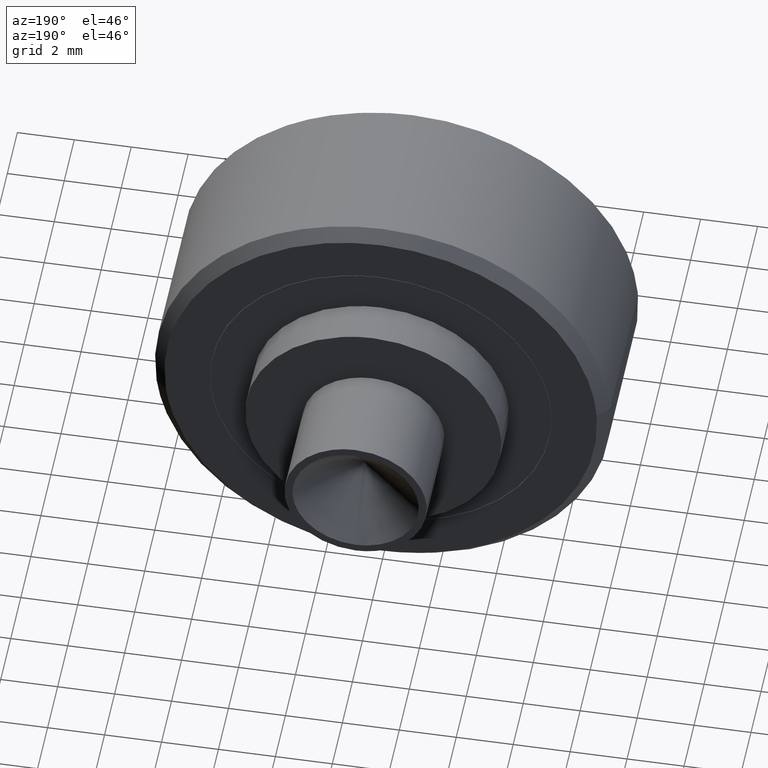
[diagram: clean part render]
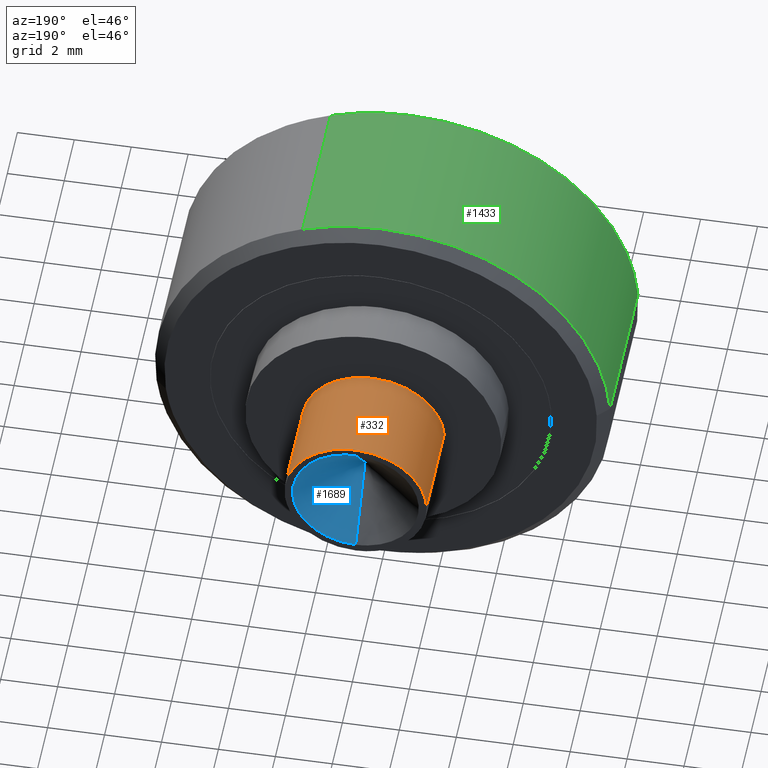
[diagram: same view with three faces highlighted in distinct colors, each labeled with its STEP entity id]
A machine part, auxiliary view with three faces highlighted in distinct colors.
Their STEP definitions:

[orange] entity #332 — the highlighted face is a freeform B-spline surface patch.
#230=CARTESIAN_POINT('',(2.482523815909166,11.437500000000007,-0.295085586641896));
#231=CARTESIAN_POINT('',(2.490969038621514,11.437500000000005,-0.224036821594944));
#232=CARTESIAN_POINT('',(2.495336996054667,11.437500000000000,-0.152621348837143));
#233=CARTESIAN_POINT('',(2.647958344891809,11.437500000000004,2.342715647217524));
#234=CARTESIAN_POINT('',(0.152621348837143,11.437500000000000,2.495336996054667));
#235=CARTESIAN_POINT('',(-2.342715647217524,11.437500000000004,2.647958344891809));
#236=CARTESIAN_POINT('',(-2.495336996054667,11.437500000000000,0.152621348837142));
#237=CARTESIAN_POINT('',(2.482523815909166,7.760312500000000,-0.295085586641896));
#238=CARTESIAN_POINT('',(2.490969038621514,7.760312500000000,-0.224036821594944));
#239=CARTESIAN_POINT('',(2.495336996054667,7.760312499999999,-0.152621348837143));
#240=CARTESIAN_POINT('',(2.647958344891809,7.760312499999999,2.342715647217524));
#241=CARTESIAN_POINT('',(0.152621348837143,7.760312499999999,2.495336996054667));
#242=CARTESIAN_POINT('',(-2.342715647217524,7.760312499999999,2.647958344891809));
#243=CARTESIAN_POINT('',(-2.495336996054667,7.760312499999999,0.152621348837142));
#251=(BOUNDED_SURFACE()B_SPLINE_SURFACE(2,1,((#230,#237),(#231,#238),(#232,#239),(#233,#240),(#234,#241),(#235,#242),(#236,#243)),.UNSPECIFIED.,.F.,.F.,.U.)B_SPLINE_SURFACE_WITH_KNOTS((3,2,2,3),(2,2),(0.0,0.165685424949238,4.307821048680188,8.449956672411137),(0.0,3.677187500000006),.UNSPECIFIED.)GEOMETRIC_REPRESENTATION_ITEM()RATIONAL_B_SPLINE_SURFACE(((0.977505800795127,0.977505800795127),(0.988284271247462,0.988284271247462),(1.0,1.0),(0.707106781186548,0.707106781186548),(1.0,1.0),(0.707106781186548,0.707106781186548),(1.0,1.0)))REPRESENTATION_ITEM('')SURFACE());
#252=CARTESIAN_POINT('',(2.482524289611070,7.850000000000031,-0.295081601383317));
#253=VERTEX_POINT('',#252);
#254=CARTESIAN_POINT('',(0.0,7.850000000000000,2.500000000000000));
#255=VERTEX_POINT('',#254);
#256=CARTESIAN_POINT('',(2.482524289611070,7.850000000000031,-0.295081601383317));
#257=CARTESIAN_POINT('',(2.500000000000000,7.850000000000000,-0.148058285435143));
#258=CARTESIAN_POINT('',(2.500000000000000,7.850000000000000,-1.467165E-016));
#259=CARTESIAN_POINT('',(2.500000000000000,7.849999999999999,2.500000000000000));
#260=CARTESIAN_POINT('',(0.0,7.850000000000000,2.500000000000000));
#268=(BOUNDED_CURVE()B_SPLINE_CURVE(2,(#256,#257,#258,#259,#260),.UNSPECIFIED.,.F.,.U.)B_SPLINE_CURVE_WITH_KNOTS((3,2,3),(0.229562744820881,0.250000000000000,0.500000000000000),.UNSPECIFIED.)CURVE()GEOMETRIC_REPRESENTATION_ITEM()RATIONAL_B_SPLINE_CURVE((0.956027285957943,0.976056266187504,1.0,0.707106781186548,1.0))REPRESENTATION_ITEM(''));
#269=EDGE_CURVE('',#253,#255,#268,.T.);
#270=ORIENTED_EDGE('',*,*,#269,.F.);
#271=CARTESIAN_POINT('',(2.482524283771402,11.350000000000000,-0.295081650513167));
#272=VERTEX_POINT('',#271);
#273=CARTESIAN_POINT('',(2.482524283771402,11.350000000000000,-0.295081650513167));
#274=CARTESIAN_POINT('',(2.482524289611070,7.850000000000031,-0.295081601383317));
#275=QUASI_UNIFORM_CURVE('',1,(#273,#274),.UNSPECIFIED.,.F.,.U.);
#276=EDGE_CURVE('',#272,#253,#275,.T.);
#277=ORIENTED_EDGE('',*,*,#276,.F.);
#278=CARTESIAN_POINT('',(0.0,11.350000000000000,2.500000000000000));
#279=VERTEX_POINT('',#278);
#280=CARTESIAN_POINT('',(2.482524283771402,11.349999999999998,-0.295081650513167));
#281=CARTESIAN_POINT('',(2.500000000000000,11.350000000000000,-0.148058310259754));
#282=CARTESIAN_POINT('',(2.500000000000000,11.350000000000000,-1.467165E-016));
#283=CARTESIAN_POINT('',(2.500000000000000,11.350000000000001,2.500000000000000));
#284=CARTESIAN_POINT('',(0.0,11.350000000000000,2.500000000000000));
#292=(BOUNDED_CURVE()B_SPLINE_CURVE(2,(#280,#281,#282,#283,#284),.UNSPECIFIED.,.F.,.U.)B_SPLINE_CURVE_WITH_KNOTS((3,2,3),(0.229562741476258,0.250000000000000,0.500000000000000),.UNSPECIFIED.)CURVE()GEOMETRIC_REPRESENTATION_ITEM()RATIONAL_B_SPLINE_CURVE((0.956027279402328,0.976056262269034,1.0,0.707106781186548,1.0))REPRESENTATION_ITEM(''));
#293=EDGE_CURVE('',#272,#279,#292,.T.);
#294=ORIENTED_EDGE('',*,*,#293,.T.);
#295=CARTESIAN_POINT('',(-2.495336996053892,11.350000000000000,0.152621348849819));
#296=VERTEX_POINT('',#295);
#297=CARTESIAN_POINT('',(0.0,11.350000000000000,2.500000000000000));
#298=CARTESIAN_POINT('',(-2.351765167240298,11.350000000000001,2.500000000000000));
#299=CARTESIAN_POINT('',(-2.495336996053891,11.350000000000007,0.152621348849819));
#307=(BOUNDED_CURVE()B_SPLINE_CURVE(2,(#297,#298,#299),.UNSPECIFIED.,.F.,.U.)B_SPLINE_CURVE_WITH_KNOTS((3,3),(0.500000000000000,0.739332962240215),.UNSPECIFIED.)CURVE()GEOMETRIC_REPRESENTATION_ITEM()RATIONAL_B_SPLINE_CURVE((1.0,0.719603993285220,0.976072041669444))REPRESENTATION_ITEM(''));
#308=EDGE_CURVE('',#279,#296,#307,.T.);
#309=ORIENTED_EDGE('',*,*,#308,.T.);
#310=CARTESIAN_POINT('',(-2.495336996053892,7.850000000000000,0.152621348849819));
#311=VERTEX_POINT('',#310);
#312=CARTESIAN_POINT('',(-2.495336996053892,11.350000000000000,0.152621348849819));
#313=CARTESIAN_POINT('',(-2.495336996053892,7.850000000000000,0.152621348849819));
#314=QUASI_UNIFORM_CURVE('',1,(#312,#313),.UNSPECIFIED.,.F.,.U.);
#315=EDGE_CURVE('',#296,#311,#314,.T.);
#316=ORIENTED_EDGE('',*,*,#315,.T.);
#317=CARTESIAN_POINT('',(0.0,7.850000000000000,2.500000000000000));
#318=CARTESIAN_POINT('',(-2.351765167240298,7.850000000000001,2.500000000000000));
#319=CARTESIAN_POINT('',(-2.495336996053891,7.850000000000000,0.152621348849819));
#327=(BOUNDED_CURVE()B_SPLINE_CURVE(2,(#317,#318,#319),.UNSPECIFIED.,.F.,.U.)B_SPLINE_CURVE_WITH_KNOTS((3,3),(0.500000000000000,0.739332962240215),.UNSPECIFIED.)CURVE()GEOMETRIC_REPRESENTATION_ITEM()RATIONAL_B_SPLINE_CURVE((1.0,0.719603993285220,0.976072041669444))REPRESENTATION_ITEM(''));
#328=EDGE_CURVE('',#255,#311,#327,.T.);
#329=ORIENTED_EDGE('',*,*,#328,.F.);
#330=EDGE_LOOP('',(#270,#277,#294,#309,#316,#329));
#331=FACE_OUTER_BOUND('',#330,.T.);
#332=ADVANCED_FACE('',(#331),#251,.T.);

[blue] entity #1689 — the highlighted face is a freeform B-spline surface patch.
#1638=CARTESIAN_POINT('',(0.0,9.489584137775408,-1.467165E-016));
#1639=CARTESIAN_POINT('',(-0.059525646005946,11.397673156469510,-2.273192709627095));
#1640=CARTESIAN_POINT('',(0.0,9.489584137775408,-1.467165E-016));
#1641=CARTESIAN_POINT('',(2.315082437704052,11.397673156469509,-2.335374010664685));
#1642=CARTESIAN_POINT('',(0.0,9.489584137775408,-1.467165E-016));
#1643=CARTESIAN_POINT('',(2.273625606077099,11.397673156469510,0.039686282576530));
#1644=CARTESIAN_POINT('',(0.0,9.489584137775408,-1.467165E-016));
#1645=CARTESIAN_POINT('',(2.232168774450145,11.397673156469509,2.414746575817746));
#1646=CARTESIAN_POINT('',(0.0,9.489584137775408,-1.467165E-016));
#1647=CARTESIAN_POINT('',(-0.138822666064501,11.397673156469510,2.269730526961503));
#1655=(BOUNDED_SURFACE()B_SPLINE_SURFACE(1,2,((#1638,#1640,#1642,#1644,#1646),(#1639,#1641,#1643,#1645,#1647)),.UNSPECIFIED.,.F.,.F.,.U.)B_SPLINE_SURFACE_WITH_KNOTS((2,2),(3,2,3),(0.0,1.0),(0.0,1.0,2.0),.UNSPECIFIED.)GEOMETRIC_REPRESENTATION_ITEM()RATIONAL_B_SPLINE_SURFACE(((1.0,0.691513055782269,1.0,0.691513055782269,1.0),(1.0,0.691513055782269,1.0,0.691513055782269,1.0)))REPRESENTATION_ITEM('')SURFACE());
#1656=CARTESIAN_POINT('',(9.050483E-017,11.350000000000000,-2.217157287525388));
#1657=VERTEX_POINT('',#1656);
#1658=CARTESIAN_POINT('',(-9.050483E-017,11.350000000000000,2.217157287525388));
#1659=VERTEX_POINT('',#1658);
#1660=CARTESIAN_POINT('',(0.0,11.350000000000000,-2.217157287525385));
#1661=CARTESIAN_POINT('',(2.217157287525386,11.350000000000001,-2.217157287525386));
#1662=CARTESIAN_POINT('',(2.217157287525385,11.350000000000000,-1.467165E-016));
#1663=CARTESIAN_POINT('',(2.217157287525386,11.350000000000001,2.217157287525386));
#1664=CARTESIAN_POINT('',(0.0,11.350000000000000,2.217157287525385));
#1672=(BOUNDED_CURVE()B_SPLINE_CURVE(2,(#1660,#1661,#1662,#1663,#1664),.UNSPECIFIED.,.F.,.U.)B_SPLINE_CURVE_WITH_KNOTS((3,2,3),(0.0,0.500000000000000,1.0),.UNSPECIFIED.)CURVE()GEOMETRIC_REPRESENTATION_ITEM()RATIONAL_B_SPLINE_CURVE((1.0,0.707106781186548,1.0,0.707106781186548,1.0))REPRESENTATION_ITEM(''));
#1673=EDGE_CURVE('',#1657,#1659,#1672,.T.);
#1674=ORIENTED_EDGE('',*,*,#1673,.F.);
#1675=CARTESIAN_POINT('',(0.0,9.489584137775410,-1.467165E-016));
#1676=VERTEX_POINT('',#1675);
#1677=CARTESIAN_POINT('',(0.0,9.489584137775410,-1.467165E-016));
#1678=CARTESIAN_POINT('',(9.050483E-017,11.350000000000000,-2.217157287525388));
#1679=QUASI_UNIFORM_CURVE('',1,(#1677,#1678),.UNSPECIFIED.,.F.,.U.);
#1680=EDGE_CURVE('',#1676,#1657,#1679,.T.);
#1681=ORIENTED_EDGE('',*,*,#1680,.F.);
#1682=CARTESIAN_POINT('',(0.0,9.489584137775410,-1.467165E-016));
#1683=CARTESIAN_POINT('',(-9.050483E-017,11.350000000000000,2.217157287525388));
#1684=QUASI_UNIFORM_CURVE('',1,(#1682,#1683),.UNSPECIFIED.,.F.,.U.);
#1685=EDGE_CURVE('',#1676,#1659,#1684,.T.);
#1686=ORIENTED_EDGE('',*,*,#1685,.T.);
#1687=EDGE_LOOP('',(#1674,#1681,#1686));
#1688=FACE_OUTER_BOUND('',#1687,.T.);
#1689=ADVANCED_FACE('',(#1688),#1655,.F.);

[green] entity #1433 — the highlighted face is a freeform B-spline surface patch.
#1230=CARTESIAN_POINT('',(-7.975338669865353,0.400000000000833,0.627672765829178));
#1231=VERTEX_POINT('',#1230);
#1237=CARTESIAN_POINT('',(-7.985078721705695,0.400000000000001,0.488382849957833));
#1238=VERTEX_POINT('',#1237);
#1239=CARTESIAN_POINT('',(-7.975338669865353,0.400000000000833,0.627672765829178));
#1240=CARTESIAN_POINT('',(-7.980816501966211,0.400000000000000,0.558070309636122));
#1241=CARTESIAN_POINT('',(-7.985078721705695,0.400000000000000,0.488382849957833));
#1249=(BOUNDED_CURVE()B_SPLINE_CURVE(2,(#1239,#1240,#1241),.UNSPECIFIED.,.F.,.U.)B_SPLINE_CURVE_WITH_KNOTS((3,3),(0.736331300632494,0.739333080361814),.UNSPECIFIED.)CURVE()GEOMETRIC_REPRESENTATION_ITEM()RATIONAL_B_SPLINE_CURVE((0.969723356171246,0.972855598818611,0.976072294826647))REPRESENTATION_ITEM(''));
#1250=EDGE_CURVE('',#1231,#1238,#1249,.T.);
#1288=CARTESIAN_POINT('',(2.812943094418373,0.400000000000000,7.489148893403270));
#1289=VERTEX_POINT('',#1288);
#1305=CARTESIAN_POINT('',(0.0,0.400000000000000,8.0));
#1306=VERTEX_POINT('',#1305);
#1307=CARTESIAN_POINT('',(2.812943094418374,0.400000000000000,7.489148893403270));
#1308=CARTESIAN_POINT('',(1.452858315335820,0.400000000000000,8.0));
#1309=CARTESIAN_POINT('',(0.0,0.400000000000000,8.0));
#1317=(BOUNDED_CURVE()B_SPLINE_CURVE(2,(#1307,#1308,#1309),.UNSPECIFIED.,.F.,.U.)B_SPLINE_CURVE_WITH_KNOTS((3,3),(0.440284200455737,0.500000000000000),.UNSPECIFIED.)CURVE()GEOMETRIC_REPRESENTATION_ITEM()RATIONAL_B_SPLINE_CURVE((0.893499590806314,0.930038589029847,1.0))REPRESENTATION_ITEM(''));
#1318=EDGE_CURVE('',#1289,#1306,#1317,.T.);
#1320=CARTESIAN_POINT('',(0.0,0.400000000000000,8.0));
#1321=CARTESIAN_POINT('',(-7.395123933253803,0.400000000000000,8.0));
#1322=CARTESIAN_POINT('',(-7.975338669865353,0.400000000000833,0.627672765829178));
#1330=(BOUNDED_CURVE()B_SPLINE_CURVE(2,(#1320,#1321,#1322),.UNSPECIFIED.,.F.,.U.)B_SPLINE_CURVE_WITH_KNOTS((3,3),(0.500000000000000,0.736331300632493),.UNSPECIFIED.)CURVE()GEOMETRIC_REPRESENTATION_ITEM()RATIONAL_B_SPLINE_CURVE((1.0,0.723120658605518,0.969723356171244))REPRESENTATION_ITEM(''));
#1331=EDGE_CURVE('',#1306,#1231,#1330,.T.);
#1368=CARTESIAN_POINT('',(2.812943795132577,6.088750000000001,7.489148630213257));
#1369=CARTESIAN_POINT('',(1.687915613723266,6.088750000000001,7.911712154921204));
#1370=CARTESIAN_POINT('',(0.488388316278856,6.088750000000001,7.985078387374934));
#1371=CARTESIAN_POINT('',(-7.496690071096078,6.088750000000001,8.473466703653790));
#1372=CARTESIAN_POINT('',(-7.985078387374934,6.088750000000001,0.488388316278856));
#1373=CARTESIAN_POINT('',(2.812943795132577,0.257781250000001,7.489148630213257));
#1374=CARTESIAN_POINT('',(1.687915613723266,0.257781250000001,7.911712154921204));
#1375=CARTESIAN_POINT('',(0.488388316278856,0.257781250000001,7.985078387374934));
#1376=CARTESIAN_POINT('',(-7.496690071096078,0.257781250000001,8.473466703653790));
#1377=CARTESIAN_POINT('',(-7.985078387374934,0.257781250000001,0.488388316278856));
#1385=(BOUNDED_SURFACE()B_SPLINE_SURFACE(2,1,((#1368,#1373),(#1369,#1374),(#1370,#1375),(#1371,#1376),(#1372,#1377)),.UNSPECIFIED.,.F.,.F.,.U.)B_SPLINE_SURFACE_WITH_KNOTS((3,2,3),(2,2),(0.0,2.650966799187807,15.905800795126840),(0.0,5.830968750000000),.UNSPECIFIED.)GEOMETRIC_REPRESENTATION_ITEM()RATIONAL_B_SPLINE_SURFACE(((0.906274169979695,0.906274169979695),(0.941421356237309,0.941421356237309),(1.0,1.0),(0.707106781186548,0.707106781186548),(1.0,1.0)))REPRESENTATION_ITEM('')SURFACE());
#1386=CARTESIAN_POINT('',(2.812941999224945,5.949999999999998,7.489149304760366));
#1387=VERTEX_POINT('',#1386);
#1388=CARTESIAN_POINT('',(0.0,5.950000000000000,8.0));
#1389=VERTEX_POINT('',#1388);
#1390=CARTESIAN_POINT('',(2.812941999224944,5.949999999999998,7.489149304760366));
#1391=CARTESIAN_POINT('',(1.452858097693186,5.949999999999999,8.0));
#1392=CARTESIAN_POINT('',(0.0,5.950000000000000,8.0));
#1400=(BOUNDED_CURVE()B_SPLINE_CURVE(2,(#1390,#1391,#1392),.UNSPECIFIED.,.F.,.U.)B_SPLINE_CURVE_WITH_KNOTS((3,3),(0.440284208775499,0.500000000000000),.UNSPECIFIED.)CURVE()GEOMETRIC_REPRESENTATION_ITEM()RATIONAL_B_SPLINE_CURVE((0.893499600987734,0.930038598777055,1.0))REPRESENTATION_ITEM(''));
#1401=EDGE_CURVE('',#1387,#1389,#1400,.T.);
#1402=ORIENTED_EDGE('',*,*,#1401,.T.);
#1403=CARTESIAN_POINT('',(-7.985078387375440,5.949999999998196,0.488388316285977));
#1404=VERTEX_POINT('',#1403);
#1405=CARTESIAN_POINT('',(0.0,5.950000000000000,8.0));
#1406=CARTESIAN_POINT('',(-7.525648535218923,5.950000000000000,8.0));
#1407=CARTESIAN_POINT('',(-7.985078387375440,5.949999999998196,0.488388316285977));
#1415=(BOUNDED_CURVE()B_SPLINE_CURVE(2,(#1405,#1406,#1407),.UNSPECIFIED.,.F.,.U.)B_SPLINE_CURVE_WITH_KNOTS((3,3),(0.500000000000000,0.739332962241359),.UNSPECIFIED.)CURVE()GEOMETRIC_REPRESENTATION_ITEM()RATIONAL_B_SPLINE_CURVE((1.0,0.719603993283880,0.976072041671895))REPRESENTATION_ITEM(''));
#1416=EDGE_CURVE('',#1389,#1404,#1415,.T.);
#1417=ORIENTED_EDGE('',*,*,#1416,.T.);
#1418=CARTESIAN_POINT('',(-7.985078387375440,5.949999999998196,0.488388316285977));
#1419=CARTESIAN_POINT('',(-7.985078721705695,0.400000000000001,0.488382849957833));
#1420=QUASI_UNIFORM_CURVE('',1,(#1418,#1419),.UNSPECIFIED.,.F.,.U.);
#1421=EDGE_CURVE('',#1404,#1238,#1420,.T.);
#1422=ORIENTED_EDGE('',*,*,#1421,.T.);
#1423=ORIENTED_EDGE('',*,*,#1250,.F.);
#1424=ORIENTED_EDGE('',*,*,#1331,.F.);
#1425=ORIENTED_EDGE('',*,*,#1318,.F.);
#1426=CARTESIAN_POINT('',(2.812941999224945,5.949999999999998,7.489149304760366));
#1427=CARTESIAN_POINT('',(2.812943094418373,0.400000000000000,7.489148893403270));
#1428=QUASI_UNIFORM_CURVE('',1,(#1426,#1427),.UNSPECIFIED.,.F.,.U.);
#1429=EDGE_CURVE('',#1387,#1289,#1428,.T.);
#1430=ORIENTED_EDGE('',*,*,#1429,.F.);
#1431=EDGE_LOOP('',(#1402,#1417,#1422,#1423,#1424,#1425,#1430));
#1432=FACE_OUTER_BOUND('',#1431,.T.);
#1433=ADVANCED_FACE('',(#1432),#1385,.T.);